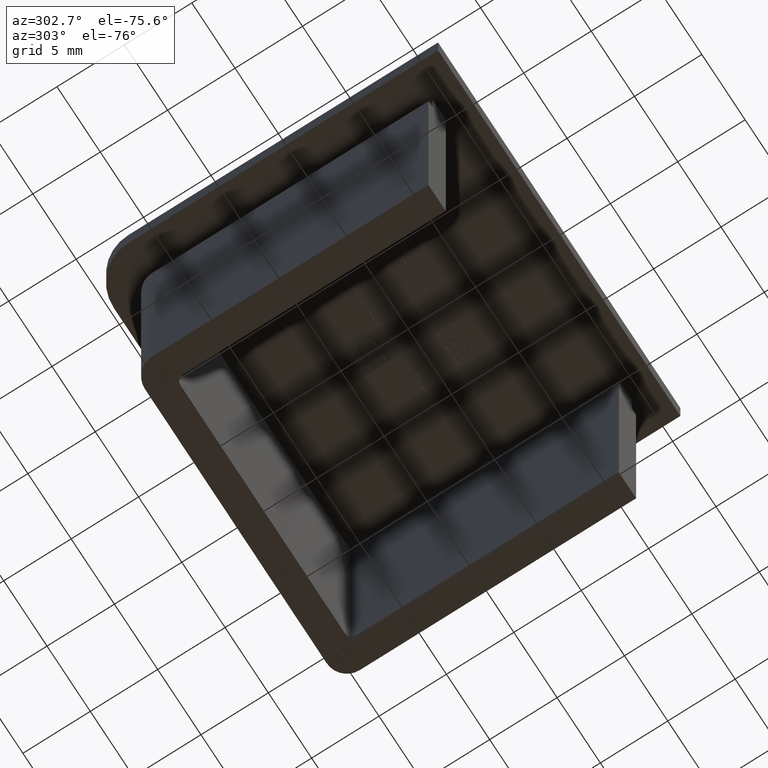
[diagram: clean part render]
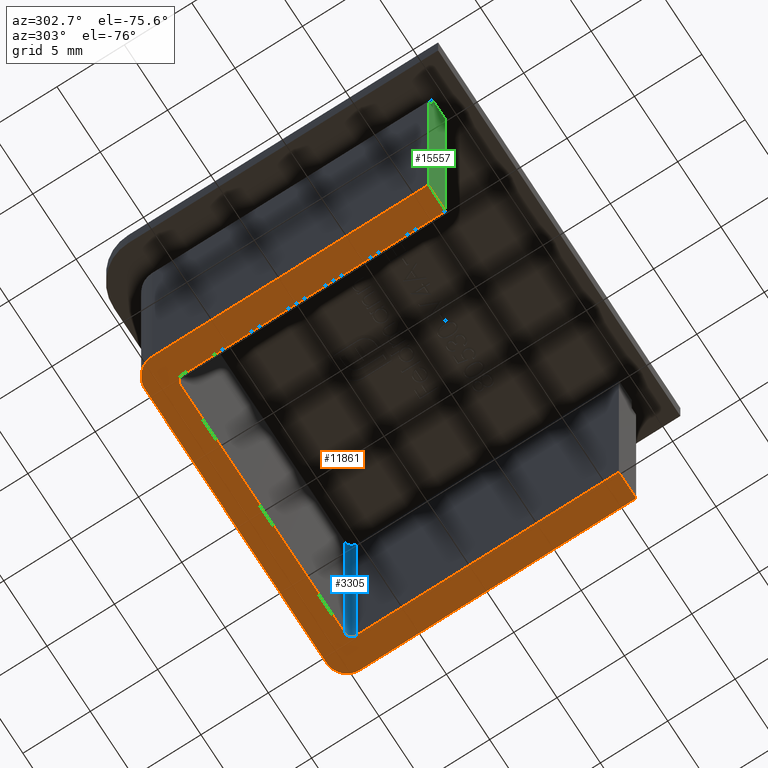
[diagram: same view with three faces highlighted in distinct colors, each labeled with its STEP entity id]
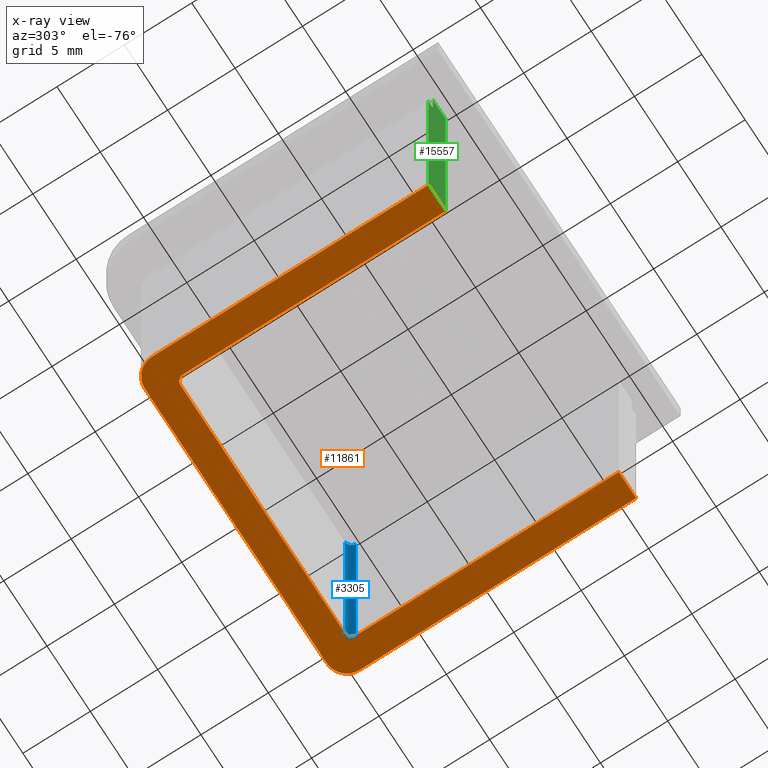
[diagram: x-ray of the same camera — body ghosted, the three highlighted faces saturated]
A machine part, auxiliary view with three faces highlighted in distinct colors.
The next image is the same camera in x-ray (body ghosted, the three faces saturated) — at least one of them is partly hidden behind the body in this view.
Their STEP definitions:

[orange] entity #11861 — the highlighted planar face has unit normal (0, 0, -1).
#16 = FACE_OUTER_BOUND ( 'NONE', #5776, .T. ) ;
#86 = CARTESIAN_POINT ( 'NONE',  ( -9.500000000000005329, 8.499999999999998224, -23.00000000000000000 ) ) ;
#109 = EDGE_CURVE ( 'NONE', #10003, #10850, #11831, .T. ) ;
#169 = ORIENTED_EDGE ( 'NONE', *, *, #12024, .T. ) ;
#217 = CIRCLE ( 'NONE', #2570, 1.499999999999999556 ) ;
#223 = LINE ( 'NONE', #13111, #7382 ) ;
#473 = EDGE_CURVE ( 'NONE', #4774, #10352, #6836, .T. ) ;
#544 = CARTESIAN_POINT ( 'NONE',  ( -12.00000000000000355, -10.99999999999999822, -23.00000000000000000 ) ) ;
#780 = VERTEX_POINT ( 'NONE', #12441 ) ;
#973 = VECTOR ( 'NONE', #14293, 1000.000000000000000 ) ;
#1324 = EDGE_CURVE ( 'NONE', #10226, #10003, #14013, .T. ) ;
#1438 = ORIENTED_EDGE ( 'NONE', *, *, #473, .T. ) ;
#1962 = CARTESIAN_POINT ( 'NONE',  ( 9.500000000000001776, 8.499999999999996447, -23.00000000000000000 ) ) ;
#1967 = DIRECTION ( 'NONE',  ( -1.000000000000000000, 0.000000000000000000, 0.000000000000000000 ) ) ;
#2348 = EDGE_CURVE ( 'NONE', #6853, #14784, #217, .T. ) ;
#2414 = DIRECTION ( 'NONE',  ( 8.896017825522089339E-17, -1.000000000000000000, -0.000000000000000000 ) ) ;
#2570 = AXIS2_PLACEMENT_3D ( 'NONE', #14430, #15717, #1967 ) ;
#2819 = AXIS2_PLACEMENT_3D ( 'NONE', #12676, #8736, #11369 ) ;
#3086 = CARTESIAN_POINT ( 'NONE',  ( -10.49999999999999112, 11.00000000000000000, -23.00000000000000000 ) ) ;
#3118 = AXIS2_PLACEMENT_3D ( 'NONE', #1962, #9665, #14805 ) ;
#3465 = DIRECTION ( 'NONE',  ( -1.000000000000000000, 8.673617379884035472E-16, -0.000000000000000000 ) ) ;
#3708 = CARTESIAN_POINT ( 'NONE',  ( 9.499999999999998224, 8.999999999999998224, -23.00000000000000000 ) ) ;
#3979 = EDGE_CURVE ( 'NONE', #10850, #780, #8862, .T. ) ;
#4104 = CARTESIAN_POINT ( 'NONE',  ( 10.49999999999999112, 11.00000000000000000, -23.00000000000000000 ) ) ;
#4133 = DIRECTION ( 'NONE',  ( -0.000000000000000000, -0.000000000000000000, 1.000000000000000000 ) ) ;
#4774 = VERTEX_POINT ( 'NONE', #15164 ) ;
#5351 = ORIENTED_EDGE ( 'NONE', *, *, #14958, .T. ) ;
#5529 = EDGE_CURVE ( 'NONE', #14784, #4774, #10266, .T. ) ;
#5672 = VERTEX_POINT ( 'NONE', #544 ) ;
#5764 = DIRECTION ( 'NONE',  ( 1.692413147294446956E-16, 1.000000000000000000, -0.000000000000000000 ) ) ;
#5776 = EDGE_LOOP ( 'NONE', ( #169, #7940, #7516, #13812, #6966, #6252, #10836, #8958, #7597, #8040, #1438, #5351 ) ) ;
#5865 = DIRECTION ( 'NONE',  ( 0.000000000000000000, 0.000000000000000000, -1.000000000000000000 ) ) ;
#6004 = CARTESIAN_POINT ( 'NONE',  ( 12.00000000000000000, -11.00000000000000000, -23.00000000000000000 ) ) ;
#6252 = ORIENTED_EDGE ( 'NONE', *, *, #3979, .T. ) ;
#6275 = VECTOR ( 'NONE', #10630, 1000.000000000000000 ) ;
#6555 = CARTESIAN_POINT ( 'NONE',  ( -9.500000000000001776, 9.000000000000000000, -23.00000000000000000 ) ) ;
#6704 = DIRECTION ( 'NONE',  ( -1.000000000000000000, 0.000000000000000000, 0.000000000000000000 ) ) ;
#6836 = CIRCLE ( 'NONE', #11199, 1.499999999999999556 ) ;
#6853 = VERTEX_POINT ( 'NONE', #8630 ) ;
#6966 = ORIENTED_EDGE ( 'NONE', *, *, #109, .T. ) ;
#7319 = CARTESIAN_POINT ( 'NONE',  ( -10.00000000000000533, 8.499999999999994671, -23.00000000000000000 ) ) ;
#7382 = VECTOR ( 'NONE', #9251, 1000.000000000000000 ) ;
#7516 = ORIENTED_EDGE ( 'NONE', *, *, #9116, .T. ) ;
#7597 = ORIENTED_EDGE ( 'NONE', *, *, #2348, .T. ) ;
#7840 = CARTESIAN_POINT ( 'NONE',  ( 10.00000000000000178, 8.499999999999992895, -23.00000000000000000 ) ) ;
#7940 = ORIENTED_EDGE ( 'NONE', *, *, #14300, .T. ) ;
#8040 = ORIENTED_EDGE ( 'NONE', *, *, #5529, .T. ) ;
#8077 = CARTESIAN_POINT ( 'NONE',  ( -12.00000000000000355, -10.99999999999999822, -23.00000000000000000 ) ) ;
#8405 = CARTESIAN_POINT ( 'NONE',  ( 10.50000000000000000, 9.500000000000000000, -23.00000000000000000 ) ) ;
#8630 = CARTESIAN_POINT ( 'NONE',  ( -12.00000000000000000, 9.499999999999989342, -23.00000000000000000 ) ) ;
#8736 = DIRECTION ( 'NONE',  ( 0.000000000000000000, 0.000000000000000000, -1.000000000000000000 ) ) ;
#8790 = CIRCLE ( 'NONE', #3118, 0.5000000000000004441 ) ;
#8862 = LINE ( 'NONE', #9822, #11465 ) ;
#8958 = ORIENTED_EDGE ( 'NONE', *, *, #11321, .T. ) ;
#9116 = EDGE_CURVE ( 'NONE', #14594, #10226, #8790, .T. ) ;
#9212 = LINE ( 'NONE', #13423, #12811 ) ;
#9251 = DIRECTION ( 'NONE',  ( -1.000000000000000000, -0.000000000000000000, -0.000000000000000000 ) ) ;
#9665 = DIRECTION ( 'NONE',  ( -0.000000000000000000, -0.000000000000000000, 1.000000000000000000 ) ) ;
#9822 = CARTESIAN_POINT ( 'NONE',  ( -10.00000000000000355, -11.00000000000000000, -23.00000000000000000 ) ) ;
#9919 = CARTESIAN_POINT ( 'NONE',  ( 10.00000000000000000, -11.00000000000000000, -23.00000000000000000 ) ) ;
#10003 = VERTEX_POINT ( 'NONE', #11106 ) ;
#10226 = VERTEX_POINT ( 'NONE', #3708 ) ;
#10266 = LINE ( 'NONE', #4104, #6275 ) ;
#10352 = VERTEX_POINT ( 'NONE', #13539 ) ;
#10532 = CARTESIAN_POINT ( 'NONE',  ( 10.00000000000000178, 8.499999999999992895, -23.00000000000000000 ) ) ;
#10630 = DIRECTION ( 'NONE',  ( 1.000000000000000000, -0.000000000000000000, -0.000000000000000000 ) ) ;
#10836 = ORIENTED_EDGE ( 'NONE', *, *, #13947, .T. ) ;
#10850 = VERTEX_POINT ( 'NONE', #7319 ) ;
#10972 = DIRECTION ( 'NONE',  ( -0.000000000000000000, -1.000000000000000000, -0.000000000000000000 ) ) ;
#11106 = CARTESIAN_POINT ( 'NONE',  ( -9.500000000000001776, 9.000000000000000000, -23.00000000000000000 ) ) ;
#11139 = PLANE ( 'NONE',  #2819 ) ;
#11199 = AXIS2_PLACEMENT_3D ( 'NONE', #8405, #5865, #14807 ) ;
#11321 = EDGE_CURVE ( 'NONE', #5672, #6853, #9212, .T. ) ;
#11369 = DIRECTION ( 'NONE',  ( -1.000000000000000000, 0.000000000000000000, -0.000000000000000000 ) ) ;
#11465 = VECTOR ( 'NONE', #2414, 1000.000000000000000 ) ;
#11728 = AXIS2_PLACEMENT_3D ( 'NONE', #86, #4133, #6704 ) ;
#11733 = VECTOR ( 'NONE', #10972, 1000.000000000000000 ) ;
#11831 = CIRCLE ( 'NONE', #11728, 0.5000000000000004441 ) ;
#11854 = VERTEX_POINT ( 'NONE', #9919 ) ;
#11861 = ADVANCED_FACE ( 'NONE', ( #16 ), #11139, .T. ) ;
#12024 = EDGE_CURVE ( 'NONE', #15662, #11854, #223, .T. ) ;
#12441 = CARTESIAN_POINT ( 'NONE',  ( -10.00000000000000355, -11.00000000000000000, -23.00000000000000000 ) ) ;
#12612 = VECTOR ( 'NONE', #15687, 1000.000000000000000 ) ;
#12676 = CARTESIAN_POINT ( 'NONE',  ( 10.50000000000000000, 9.500000000000000000, -23.00000000000000000 ) ) ;
#12811 = VECTOR ( 'NONE', #5764, 1000.000000000000000 ) ;
#13111 = CARTESIAN_POINT ( 'NONE',  ( 10.00000000000000000, -11.00000000000000000, -23.00000000000000000 ) ) ;
#13142 = LINE ( 'NONE', #7840, #973 ) ;
#13423 = CARTESIAN_POINT ( 'NONE',  ( -12.00000000000000000, 9.499999999999989342, -23.00000000000000000 ) ) ;
#13539 = CARTESIAN_POINT ( 'NONE',  ( 12.00000000000000000, 9.499999999999989342, -23.00000000000000000 ) ) ;
#13812 = ORIENTED_EDGE ( 'NONE', *, *, #1324, .T. ) ;
#13875 = CARTESIAN_POINT ( 'NONE',  ( 12.00000000000000000, -11.00000000000000000, -23.00000000000000000 ) ) ;
#13947 = EDGE_CURVE ( 'NONE', #780, #5672, #13954, .T. ) ;
#13954 = LINE ( 'NONE', #8077, #14156 ) ;
#14013 = LINE ( 'NONE', #6555, #12612 ) ;
#14156 = VECTOR ( 'NONE', #3465, 1000.000000000000000 ) ;
#14293 = DIRECTION ( 'NONE',  ( 8.896017825522090571E-17, 1.000000000000000000, 0.000000000000000000 ) ) ;
#14300 = EDGE_CURVE ( 'NONE', #11854, #14594, #13142, .T. ) ;
#14430 = CARTESIAN_POINT ( 'NONE',  ( -10.50000000000000000, 9.500000000000000000, -23.00000000000000000 ) ) ;
#14594 = VERTEX_POINT ( 'NONE', #10532 ) ;
#14784 = VERTEX_POINT ( 'NONE', #3086 ) ;
#14805 = DIRECTION ( 'NONE',  ( -1.000000000000000000, 0.000000000000000000, 0.000000000000000000 ) ) ;
#14807 = DIRECTION ( 'NONE',  ( -1.000000000000000000, 0.000000000000000000, 0.000000000000000000 ) ) ;
#14958 = EDGE_CURVE ( 'NONE', #10352, #15662, #16377, .T. ) ;
#15164 = CARTESIAN_POINT ( 'NONE',  ( 10.49999999999999112, 11.00000000000000000, -23.00000000000000000 ) ) ;
#15662 = VERTEX_POINT ( 'NONE', #13875 ) ;
#15687 = DIRECTION ( 'NONE',  ( -1.000000000000000000, 9.130123557772669567E-17, -0.000000000000000000 ) ) ;
#15717 = DIRECTION ( 'NONE',  ( 0.000000000000000000, 0.000000000000000000, -1.000000000000000000 ) ) ;
#16377 = LINE ( 'NONE', #6004, #11733 ) ;

[blue] entity #3305 — the highlighted cylindrical surface (edge-blend (fillet) strip) has radius 0.5 mm, axis along (-0, -0, 1).
#316 = AXIS2_PLACEMENT_3D ( 'NONE', #2862, #10275, #9034 ) ;
#951 = ORIENTED_EDGE ( 'NONE', *, *, #6557, .T. ) ;
#1376 = VECTOR ( 'NONE', #14695, 1000.000000000000000 ) ;
#1962 = CARTESIAN_POINT ( 'NONE',  ( 9.500000000000001776, 8.499999999999996447, -23.00000000000000000 ) ) ;
#2635 = CARTESIAN_POINT ( 'NONE',  ( 9.499999999999998224, 8.999999999999998224, 0.000000000000000000 ) ) ;
#2862 = CARTESIAN_POINT ( 'NONE',  ( 9.500000000000001776, 8.499999999999996447, -23.00000000000000000 ) ) ;
#3033 = FACE_OUTER_BOUND ( 'NONE', #16321, .T. ) ;
#3118 = AXIS2_PLACEMENT_3D ( 'NONE', #1962, #9665, #14805 ) ;
#3305 = ADVANCED_FACE ( 'NONE', ( #3033 ), #13397, .F. ) ;
#3708 = CARTESIAN_POINT ( 'NONE',  ( 9.499999999999998224, 8.999999999999998224, -23.00000000000000000 ) ) ;
#3874 = DIRECTION ( 'NONE',  ( -1.000000000000000000, 0.000000000000000000, 0.000000000000000000 ) ) ;
#4068 = VERTEX_POINT ( 'NONE', #2635 ) ;
#4743 = LINE ( 'NONE', #15481, #1376 ) ;
#5249 = CARTESIAN_POINT ( 'NONE',  ( 9.500000000000001776, 8.499999999999996447, 0.000000000000000000 ) ) ;
#6492 = DIRECTION ( 'NONE',  ( -0.000000000000000000, -0.000000000000000000, 1.000000000000000000 ) ) ;
#6557 = EDGE_CURVE ( 'NONE', #10108, #4068, #14658, .T. ) ;
#7948 = EDGE_CURVE ( 'NONE', #14594, #10108, #8391, .T. ) ;
#8391 = LINE ( 'NONE', #11274, #9000 ) ;
#8790 = CIRCLE ( 'NONE', #3118, 0.5000000000000004441 ) ;
#9000 = VECTOR ( 'NONE', #16559, 1000.000000000000000 ) ;
#9034 = DIRECTION ( 'NONE',  ( 1.000000000000000000, 0.000000000000000000, 0.000000000000000000 ) ) ;
#9116 = EDGE_CURVE ( 'NONE', #14594, #10226, #8790, .T. ) ;
#9665 = DIRECTION ( 'NONE',  ( -0.000000000000000000, -0.000000000000000000, 1.000000000000000000 ) ) ;
#9888 = CARTESIAN_POINT ( 'NONE',  ( 10.00000000000000178, 8.499999999999996447, 0.000000000000000000 ) ) ;
#10108 = VERTEX_POINT ( 'NONE', #9888 ) ;
#10226 = VERTEX_POINT ( 'NONE', #3708 ) ;
#10275 = DIRECTION ( 'NONE',  ( -0.000000000000000000, -0.000000000000000000, 1.000000000000000000 ) ) ;
#10532 = CARTESIAN_POINT ( 'NONE',  ( 10.00000000000000178, 8.499999999999992895, -23.00000000000000000 ) ) ;
#10646 = ORIENTED_EDGE ( 'NONE', *, *, #9116, .F. ) ;
#11274 = CARTESIAN_POINT ( 'NONE',  ( 10.00000000000000178, 8.499999999999992895, -23.00000000000000000 ) ) ;
#13074 = ORIENTED_EDGE ( 'NONE', *, *, #14708, .F. ) ;
#13397 = CYLINDRICAL_SURFACE ( 'NONE', #316, 0.5000000000000004441 ) ;
#13480 = AXIS2_PLACEMENT_3D ( 'NONE', #5249, #6492, #3874 ) ;
#14175 = ORIENTED_EDGE ( 'NONE', *, *, #7948, .T. ) ;
#14594 = VERTEX_POINT ( 'NONE', #10532 ) ;
#14658 = CIRCLE ( 'NONE', #13480, 0.5000000000000004441 ) ;
#14695 = DIRECTION ( 'NONE',  ( -0.000000000000000000, -0.000000000000000000, 1.000000000000000000 ) ) ;
#14708 = EDGE_CURVE ( 'NONE', #10226, #4068, #4743, .T. ) ;
#14805 = DIRECTION ( 'NONE',  ( -1.000000000000000000, 0.000000000000000000, 0.000000000000000000 ) ) ;
#15481 = CARTESIAN_POINT ( 'NONE',  ( 9.499999999999998224, 8.999999999999998224, -23.00000000000000000 ) ) ;
#16321 = EDGE_LOOP ( 'NONE', ( #951, #13074, #10646, #14175 ) ) ;
#16559 = DIRECTION ( 'NONE',  ( -0.000000000000000000, -0.000000000000000000, 1.000000000000000000 ) ) ;

[green] entity #15557 — the highlighted planar face has unit normal (0, 1, 0).
#27 = LINE ( 'NONE', #13033, #3216 ) ;
#442 = VECTOR ( 'NONE', #9962, 1000.000000000000000 ) ;
#503 = DIRECTION ( 'NONE',  ( -0.000000000000000000, -0.000000000000000000, 1.000000000000000000 ) ) ;
#544 = CARTESIAN_POINT ( 'NONE',  ( -12.00000000000000355, -10.99999999999999822, -23.00000000000000000 ) ) ;
#780 = VERTEX_POINT ( 'NONE', #12441 ) ;
#865 = PLANE ( 'NONE',  #3164 ) ;
#1255 = LINE ( 'NONE', #4118, #13048 ) ;
#1826 = ORIENTED_EDGE ( 'NONE', *, *, #2343, .T. ) ;
#1968 = FACE_OUTER_BOUND ( 'NONE', #6779, .T. ) ;
#2343 = EDGE_CURVE ( 'NONE', #9146, #12123, #27, .T. ) ;
#2737 = DIRECTION ( 'NONE',  ( 0.000000000000000000, 0.000000000000000000, -1.000000000000000000 ) ) ;
#2788 = CARTESIAN_POINT ( 'NONE',  ( -12.00000000000000178, -10.99999999999999822, -2.000000000000000000 ) ) ;
#2789 = LINE ( 'NONE', #8365, #13575 ) ;
#3164 = AXIS2_PLACEMENT_3D ( 'NONE', #15038, #8692, #12513 ) ;
#3216 = VECTOR ( 'NONE', #15600, 1000.000000000000000 ) ;
#3465 = DIRECTION ( 'NONE',  ( -1.000000000000000000, 8.673617379884035472E-16, -0.000000000000000000 ) ) ;
#4118 = CARTESIAN_POINT ( 'NONE',  ( -11.50000000000000533, -10.99999999999999822, -2.000000000000000000 ) ) ;
#4490 = DIRECTION ( 'NONE',  ( -1.000000000000000000, 8.673617379884035472E-16, -0.000000000000000000 ) ) ;
#4538 = EDGE_CURVE ( 'NONE', #5672, #10720, #7799, .T. ) ;
#4565 = VERTEX_POINT ( 'NONE', #9299 ) ;
#5047 = CARTESIAN_POINT ( 'NONE',  ( -10.00000000000000355, -11.00000000000000000, -23.00000000000000000 ) ) ;
#5389 = ORIENTED_EDGE ( 'NONE', *, *, #8328, .T. ) ;
#5672 = VERTEX_POINT ( 'NONE', #544 ) ;
#5825 = LINE ( 'NONE', #5047, #442 ) ;
#5933 = ORIENTED_EDGE ( 'NONE', *, *, #4538, .F. ) ;
#6779 = EDGE_LOOP ( 'NONE', ( #13543, #8388, #5933, #7448, #5389, #1826 ) ) ;
#6926 = EDGE_CURVE ( 'NONE', #12123, #4565, #1255, .T. ) ;
#7448 = ORIENTED_EDGE ( 'NONE', *, *, #13947, .F. ) ;
#7799 = LINE ( 'NONE', #11919, #13018 ) ;
#8077 = CARTESIAN_POINT ( 'NONE',  ( -12.00000000000000355, -10.99999999999999822, -23.00000000000000000 ) ) ;
#8328 = EDGE_CURVE ( 'NONE', #780, #9146, #5825, .T. ) ;
#8365 = CARTESIAN_POINT ( 'NONE',  ( -13.50000000000000178, -10.99999999999999645, -2.000000000000000000 ) ) ;
#8388 = ORIENTED_EDGE ( 'NONE', *, *, #9902, .T. ) ;
#8692 = DIRECTION ( 'NONE',  ( 8.673617379884035472E-16, 1.000000000000000000, 0.000000000000000000 ) ) ;
#9146 = VERTEX_POINT ( 'NONE', #13626 ) ;
#9299 = CARTESIAN_POINT ( 'NONE',  ( -11.50000000000000178, -10.99999999999999822, -2.000000000000000000 ) ) ;
#9641 = CARTESIAN_POINT ( 'NONE',  ( -11.50000000000000178, -10.99999999999999822, 0.000000000000000000 ) ) ;
#9902 = EDGE_CURVE ( 'NONE', #4565, #10720, #2789, .T. ) ;
#9962 = DIRECTION ( 'NONE',  ( -0.000000000000000000, -0.000000000000000000, 1.000000000000000000 ) ) ;
#10720 = VERTEX_POINT ( 'NONE', #2788 ) ;
#11919 = CARTESIAN_POINT ( 'NONE',  ( -12.00000000000000355, -10.99999999999999822, -23.00000000000000000 ) ) ;
#12123 = VERTEX_POINT ( 'NONE', #9641 ) ;
#12441 = CARTESIAN_POINT ( 'NONE',  ( -10.00000000000000355, -11.00000000000000000, -23.00000000000000000 ) ) ;
#12513 = DIRECTION ( 'NONE',  ( -1.000000000000000000, 8.673617379884035472E-16, 0.000000000000000000 ) ) ;
#13018 = VECTOR ( 'NONE', #503, 1000.000000000000000 ) ;
#13033 = CARTESIAN_POINT ( 'NONE',  ( -12.00000000000000355, -10.99999999999999822, 0.000000000000000000 ) ) ;
#13048 = VECTOR ( 'NONE', #2737, 1000.000000000000000 ) ;
#13543 = ORIENTED_EDGE ( 'NONE', *, *, #6926, .T. ) ;
#13575 = VECTOR ( 'NONE', #4490, 1000.000000000000000 ) ;
#13626 = CARTESIAN_POINT ( 'NONE',  ( -10.00000000000000355, -11.00000000000000000, 0.000000000000000000 ) ) ;
#13947 = EDGE_CURVE ( 'NONE', #780, #5672, #13954, .T. ) ;
#13954 = LINE ( 'NONE', #8077, #14156 ) ;
#14156 = VECTOR ( 'NONE', #3465, 1000.000000000000000 ) ;
#15038 = CARTESIAN_POINT ( 'NONE',  ( -12.00000000000000355, -10.99999999999999822, -23.00000000000000000 ) ) ;
#15557 = ADVANCED_FACE ( 'NONE', ( #1968 ), #865, .F. ) ;
#15600 = DIRECTION ( 'NONE',  ( -1.000000000000000000, 8.673617379884035472E-16, -0.000000000000000000 ) ) ;